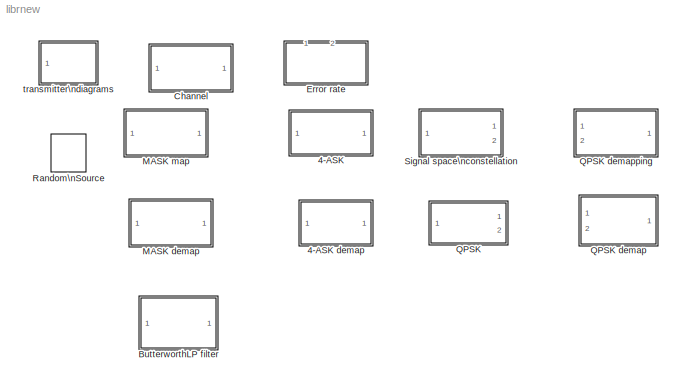
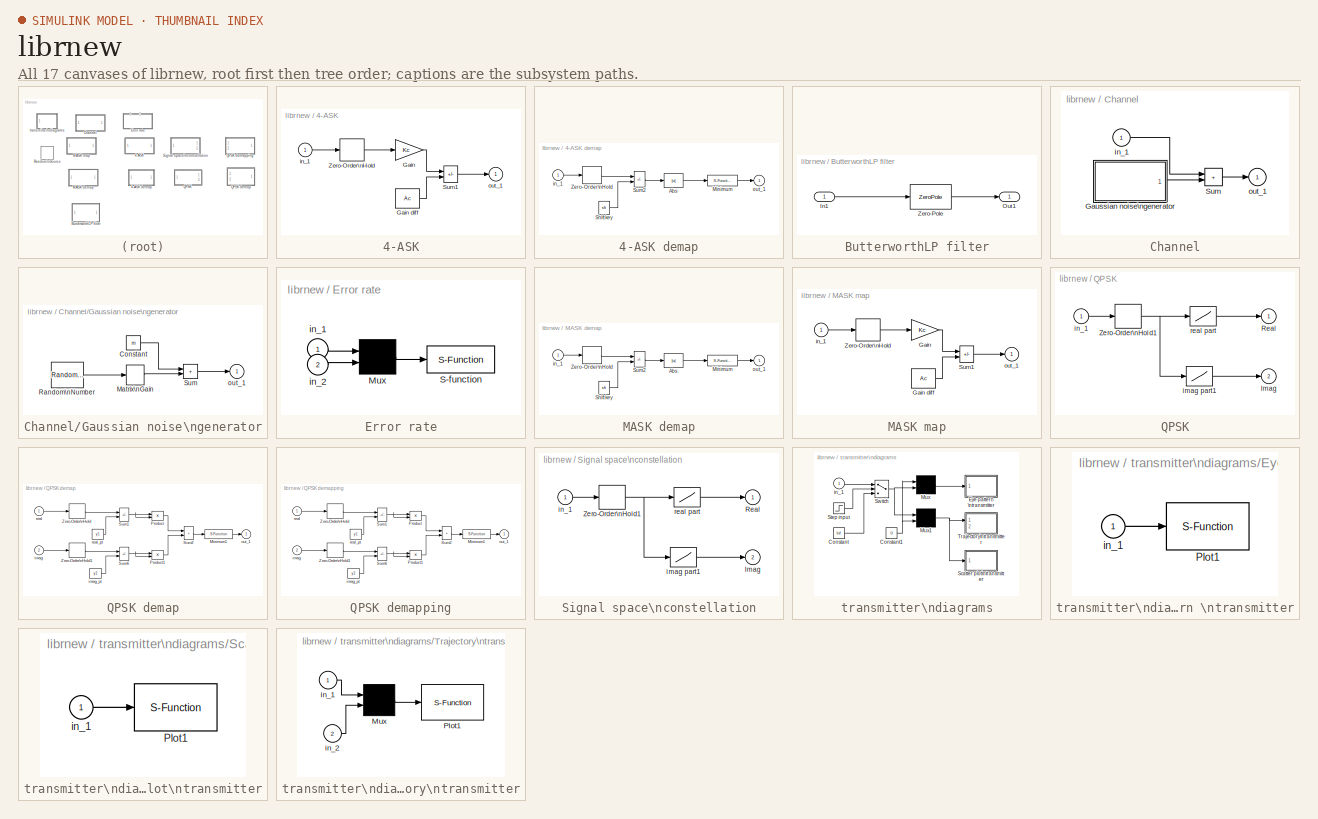
[diagram: thumbnail index - all 17 canvases of the model, root first then tree order]
MODEL librnew
KIND library
BLOCK [SubSystem] 4-ASK
  MaskCallbackString = |
  MaskDescription = Map a digital symbol onto an analog\nsignal in the range [-1, 1] using M-ary\namplitude shift keying modulation mapping.
  MaskDisplay = disp('MASK\\nmapping')
  MaskEnableString = on,on
  MaskHelp = This block maps an input digit signal onto a signal in the range [-1, 1]. The coded signal can be modulated using analog\\nmodulation blocks. Input digits are in the range [0, M-1], where M is the M-ary number. The input symbol interval can be a two-element vector with the second element being offset. The default value offset is 0. Use the MODMAP function to see the constellation.
  MaskIconFrame = on
  MaskIconOpaque = on
  MaskIconRotate = none
  MaskIconUnits = autoscale
  MaskInitialization = Ac=1;Kc=Ac*2/(N-1);
  MaskPromptString = M-ary number (input integers in range [0, M-1]):|Input symbol interval and offset (sec):
  MaskStyleString = edit,edit
  MaskToolTipString = on,on
  MaskTunableValueString = on,on
  MaskType = M-ASK mapping
  MaskValueString = 4|1
  MaskVariableAliases = ,
  MaskVariables = N=@1;td=@2;
  MaskVisibilityString = on,on
  Ports = [1, 1]
  RTWFcnNameOpts = Auto
  RTWFileNameOpts = Auto
  RTWSystemCode = Auto
  ShowPortLabels = on
  TreatAsAtomicUnit = off
BLOCK [SubSystem] 4-ASK demap
  MaskCallbackString = |
  MaskDescription = Reverse the MASK mapping process\nConvert [-1 1] analog signal to [0, M-1] symbols.
  MaskDisplay = disp('MASK\\ndemapping')
  MaskEnableString = on,on
  MaskHelp = This block demaps a MASK mapped signal back to digit symbols. You can place this block after a amplitude demodulation block. The input of this block is an analog signal in the range [-1, 1]. The demodulation decides the closest integer fitting in [0,M-1] range. When the input symbol interval is a two-elements vector, the second element is offset. The default offset value is 0.
  MaskIconFrame = on
  MaskIconOpaque = on
  MaskIconRotate = none
  MaskIconUnits = autoscale
  MaskInitialization = Ac=1;sft=[0:N-1]*Ac*2/(N-1)-Ac;
  MaskPromptString = M-ary number (digit integers in ranger [0, M-1]):|Output symbol interval and offset (sec):
  MaskStyleString = edit,edit
  MaskToolTipString = on,on
  MaskTunableValueString = on,on
  MaskType = MASK demapping
  MaskValueString = 4|[1, .9]
  MaskVariableAliases = ,
  MaskVariables = N=@1;td=@2;
  MaskVisibilityString = on,on
  Ports = [1, 1]
  RTWFcnNameOpts = Auto
  RTWFileNameOpts = Auto
  RTWSystemCode = Auto
  ShowPortLabels = on
  TreatAsAtomicUnit = off
BLOCK [Abs] 4-ASK demap/Abs
  SaturateOnIntegerOverflow = on
BLOCK [S-Function] 4-ASK demap/Minimum
  FunctionName = arymimai
  Parameters = 'min'
  PortCounts = []
  Ports = [1, 1]
  SFunctionModules = ''
BLOCK [Constant] 4-ASK demap/Shift key
  Value = sft
  VectorParams1D = on
BLOCK [Sum] 4-ASK demap/Sum2
  IconShape = rectangular
  Inputs = +-
  Ports = [2, 1]
  SaturateOnIntegerOverflow = on
BLOCK [ZeroOrderHold] 4-ASK demap/Zero-Order\nHold
  SampleTime = td
BLOCK [Inport] 4-ASK demap/in_1
  Interpolate = on
  LatchInput = off
  Port = 1
BLOCK [Outport] 4-ASK demap/out_1
  InitialOutput = []
  OutputWhenDisabled = held
  Port = 1
BLOCK [Gain] 4-ASK/Gain
  Gain = Kc
  Multiplication = Element-wise(K.*u)
  SaturateOnIntegerOverflow = on
BLOCK [Constant] 4-ASK/Gain diff
  Value = Ac
  VectorParams1D = on
BLOCK [Sum] 4-ASK/Sum1
  IconShape = rectangular
  Inputs = +-
  Ports = [2, 1]
  SaturateOnIntegerOverflow = on
BLOCK [ZeroOrderHold] 4-ASK/Zero-Order\nHold
  SampleTime = td
BLOCK [Inport] 4-ASK/in_1
  Interpolate = on
  LatchInput = off
  Port = 1
BLOCK [Outport] 4-ASK/out_1
  InitialOutput = []
  OutputWhenDisabled = held
  Port = 1
BLOCK [SubSystem] ButterworthLP filter
  MaskCallbackString = |
  MaskDisplay = plot(0,0,100,100,[90,10,10],[10,10,90],[70,40,9],[10,70,70])
  MaskEnableString = on,on
  MaskIconFrame = on
  MaskIconOpaque = on
  MaskIconRotate = none
  MaskIconUnits = autoscale
  MaskInitialization = z = @1 * [];\np = @1 * exp(i*(pi*(1:2:n-1)/(2*n) + pi/2));\np = [p; conj(p)];\np = p(:);\nif rem(n,2)==1   % n is odd\n    p = [p; -1];\nend\nk = real(prod(-p));
  MaskPromptString = Cutoff frequency (rad/s)|Filter order
  MaskStyleString = edit,edit
  MaskToolTipString = on,on
  MaskTunableValueString = on,on
  MaskType = Lowpass Butterworth filter
  MaskValueString = 5|4
  MaskVariableAliases = ,
  MaskVariables = n=@2;
  MaskVisibilityString = on,on
  Ports = [1, 1]
  RTWFcnNameOpts = Auto
  RTWFileNameOpts = Auto
  RTWSystemCode = Auto
  ShowPortLabels = on
  TreatAsAtomicUnit = off
BLOCK [Inport] ButterworthLP filter/In1
  Interpolate = on
  LatchInput = off
  Port = 1
BLOCK [Outport] ButterworthLP filter/Out1
  InitialOutput = []
  OutputWhenDisabled = held
  Port = 1
BLOCK [ZeroPole] ButterworthLP filter/Zero-Pole
  AbsoluteTolerance = auto
  Gain = k
  Poles = p
  Zeros = z
BLOCK [SubSystem] Channel
  MaskCallbackString = ||
  MaskDescription = Additive white Gaussian noise channel\nwith fixed mean and variance.
  MaskDisplay = plot(0,0,100,100);\ndisp('AWGN')
  MaskEnableString = on,on,on
  MaskHelp = This block adds white Gaussian noise to the input signal. The mean and the variance can be a scalar or vector with the same length as the input signal.
  MaskIconFrame = on
  MaskIconOpaque = on
  MaskIconRotate = none
  MaskIconUnits = autoscale
  MaskInitialization = [m,variance,s]=gwnoise(m,variance,s);\n
  MaskPromptString = Mean value:|Variance (std^2):|Initial Seed:
  MaskStyleString = edit,edit,edit
  MaskToolTipString = on,on,on
  MaskTunableValueString = on,on,on
  MaskType = AWGN channel, fixed parameter
  MaskValueString = 0|0.00010|12345
  MaskVariableAliases = ,,
  MaskVariables = m=@1;variance=@2;s=@3;
  MaskVisibilityString = on,on,on
  Ports = [1, 1]
  RTWFcnNameOpts = Auto
  RTWFileNameOpts = Auto
  RTWSystemCode = Auto
  ShowPortLabels = off
  TreatAsAtomicUnit = off
BLOCK [SubSystem] Channel/Gaussian noise\ngenerator
  MaskCallbackString = ||
  MaskDescription = Generate Gaussian distributed noise with\ngiven mean and variance value.
  MaskDisplay = plot(0,0,100,100,x,y);disp('Gaussian')
  MaskEnableString = on,on,on
  MaskHelp = When the mean value and seed are vectors, the output of this block is a vector. The length of the vector is the same as the length of the mean value vector or the length of the seed. When the variance entry is a vector, the variance is a diagonal matrix.
  MaskIconFrame = on
  MaskIconOpaque = on
  MaskIconRotate = none
  MaskIconUnits = autoscale
  MaskInitialization = [m,variance,s]=gwnoise(m,variance,s);[x,y]=srcsicon(3);
  MaskPromptString = Mean value:|Variance (vector or matrix):|Initial seed:
  MaskStyleString = edit,edit,edit
  MaskToolTipString = on,on,on
  MaskTunableValueString = on,on,on
  MaskType = Gaussian noise generator
  MaskValueString = m|variance|s
  MaskVariableAliases = ,,
  MaskVariables = m=@1;variance=@2;s=@3;
  MaskVisibilityString = on,on,on
  Ports = [0, 1]
  RTWFcnNameOpts = Auto
  RTWFileNameOpts = Auto
  RTWSystemCode = Auto
  ShowPortLabels = off
  TreatAsAtomicUnit = off
BLOCK [Constant] Channel/Gaussian noise\ngenerator/Constant
  Value = m
  VectorParams1D = on
BLOCK [StateSpace] Channel/Gaussian noise\ngenerator/Matrix\nGain
  A = []
  AbsoluteTolerance = auto
  B = []
  C = []
  D = K
  MaskDescription = Matrix Gain.
  MaskDisplay = disp('K')
  MaskEnableString = on
  MaskHelp = Multiplies input vector by entered matrix to produce output vector (y=Au).
  MaskIconFrame = on
  MaskIconOpaque = on
  MaskIconRotate = none
  MaskIconUnits = autoscale
  MaskInitialization = K = @1;
  MaskPromptString = Gain matrix:
  MaskStyleString = edit
  MaskToolTipString = on
  MaskTunableValueString = on
  MaskType = Matrix Gain
  MaskValueString = variance
  MaskVisibilityString = on
  Realization = auto
  X0 = 0
BLOCK [RandomNumber] Channel/Gaussian noise\ngenerator/Random\nNumber
  Mean = 0
  SampleTime = 0
  Seed = s
  Variance = 1
  VectorParams1D = on
BLOCK [Sum] Channel/Gaussian noise\ngenerator/Sum
  IconShape = rectangular
  Inputs = ++
  Ports = [2, 1]
  SaturateOnIntegerOverflow = on
BLOCK [Outport] Channel/Gaussian noise\ngenerator/out_1
  InitialOutput = []
  OutputWhenDisabled = held
  Port = 1
BLOCK [Sum] Channel/Sum
  IconShape = rectangular
  Inputs = ++
  Ports = [2, 1]
  SaturateOnIntegerOverflow = on
BLOCK [Inport] Channel/in_1
  Interpolate = on
  LatchInput = off
  Port = 1
BLOCK [Outport] Channel/out_1
  InitialOutput = []
  OutputWhenDisabled = held
  Port = 1
BLOCK [SubSystem] Error rate
  CopyFcn = sbiterr([],[],[],'CopyBlock')
  DeleteFcn = sbiterr([],[],[],'DeleteBlock')
  LoadFcn = sbiterr([],[],[],'LoadBlock')
  MaskCallbackString = |||
  MaskDescription = Use the input data from the 1st port as the reference signal to detect the number of errors and error rate of the 2nd signal.
  MaskDisplay = disp('Error\\nmeter')
  MaskEnableString = on,on,on,on
  MaskHelp = The signal from the first port must be a scalar. The second input port can be a vector with a delay to the first port signal. The comparison happens only at the sampling point.
  MaskIconFrame = on
  MaskIconOpaque = on
  MaskIconRotate = none
  MaskIconUnits = autoscale
  MaskInitialization = K=@1;num_lin=@2;TDelay=@3;Sample=@4;
  MaskPromptString = Bit per symbol:|Number of digits on display:|Delay between 1st port and 2nd port:|Sample time (sec):
  MaskStyleString = edit,edit,edit,edit
  MaskToolTipString = on,on,on,on
  MaskTunableValueString = on,on,on,on
  MaskType = Symbol/bit error counter
  MaskValueString = 1|10|12|1
  MaskVariableAliases = ,,,
  MaskVisibilityString = on,on,on,on
  NameChangeFcn = sbiterr([],[],[],'NameChange')
  Ports = [2]
  RTWFcnNameOpts = Auto
  RTWFileNameOpts = Auto
  RTWSystemCode = Auto
  ShowPortLabels = off
  StartFcn = sbiterr([],[],[],'Start')
  StopFcn = sbiterr([],[],[],'Stop')
  TreatAsAtomicUnit = off
BLOCK [Mux] Error rate/Mux
  DisplayOption = none
  Inputs = 2
  Ports = [2, 1]
BLOCK [S-Function] Error rate/S-function
  FunctionName = sbiterr
  Parameters = num_lin, K, TDelay, Sample
  PortCounts = []
  Ports = [1]
  SFunctionModules = ''
BLOCK [Inport] Error rate/in_1
  Interpolate = on
  LatchInput = off
  Port = 1
BLOCK [Inport] Error rate/in_2
  Interpolate = on
  LatchInput = off
  Port = 2
BLOCK [SubSystem] MASK demap
  MaskCallbackString = |
  MaskDescription = Reverse the MASK mapping process\nConvert [-1 1] analog signal to [0, M-1] symbols.
  MaskDisplay = disp('MASK\\ndemap')
  MaskEnableString = on,on
  MaskHelp = This block demaps a MASK mapped signal back to digit symbols. You can place this block after a amplitude demodulation block. The input of this block is an analog signal in the range [-1, 1]. The demodulation decides the closest integer fitting in [0,M-1] range. When the input symbol interval is a two-elements vector, the second element is offset. The default offset value is 0.
  MaskIconFrame = on
  MaskIconOpaque = on
  MaskIconRotate = none
  MaskIconUnits = autoscale
  MaskInitialization = N=@1;Ac=1;sft=[0:N-1]*Ac*2/(N-1)-Ac;td=@2;
  MaskPromptString = M-ary number (digit integers in ranger [0, M-1]):|Output symbol interval and offset (sec):
  MaskStyleString = edit,edit
  MaskToolTipString = on,on
  MaskTunableValueString = on,on
  MaskType = MASK demap
  MaskValueString = 4|[1, .9]
  MaskVariableAliases = ,
  MaskVisibilityString = on,on
  Ports = [1, 1]
  RTWFcnNameOpts = Auto
  RTWFileNameOpts = Auto
  RTWSystemCode = Auto
  ShowPortLabels = off
  TreatAsAtomicUnit = off
BLOCK [Abs] MASK demap/Abs
  SaturateOnIntegerOverflow = on
BLOCK [S-Function] MASK demap/Minimum
  FunctionName = arymimai
  Parameters = 'min'
  PortCounts = []
  Ports = [1, 1]
  SFunctionModules = ''
BLOCK [Constant] MASK demap/Shift key
  Value = sft
  VectorParams1D = on
BLOCK [Sum] MASK demap/Sum2
  IconShape = rectangular
  Inputs = +-
  Ports = [2, 1]
  SaturateOnIntegerOverflow = on
BLOCK [ZeroOrderHold] MASK demap/Zero-Order\nHold
  SampleTime = td
BLOCK [Inport] MASK demap/in_1
  Interpolate = on
  LatchInput = off
  Port = 1
BLOCK [Outport] MASK demap/out_1
  InitialOutput = []
  OutputWhenDisabled = held
  Port = 1
BLOCK [SubSystem] MASK map
  MaskCallbackString = |
  MaskDescription = Map a digital symbol onto an analog\nsignal in the range [-1, 1] using M-ary\namplitude shift keying modulation mapping.
  MaskDisplay = disp('MASK\\nmap')
  MaskEnableString = on,on
  MaskHelp = This block maps an input digit signal onto a signal in the range [-1, 1]. The coded signal can be modulated using analog\\nmodulation blocks. Input digits are in the range [0, M-1], where M is the M-ary number. The input symbol interval can be a two-element vector with the second element being offset. The default value offset is 0. Use the MODMAP function to see the constellation.
  MaskIconFrame = on
  MaskIconOpaque = on
  MaskIconRotate = none
  MaskIconUnits = autoscale
  MaskInitialization = N=@1;Ac=1;Kc=Ac*2/(N-1);td=@2;
  MaskPromptString = M-ary number (input integers in range [0, M-1]):|Input symbol interval and offset (sec):
  MaskStyleString = edit,edit
  MaskToolTipString = on,on
  MaskTunableValueString = on,on
  MaskType = MASK map
  MaskValueString = 4|1
  MaskVariableAliases = ,
  MaskVisibilityString = on,on
  Ports = [1, 1]
  RTWFcnNameOpts = Auto
  RTWFileNameOpts = Auto
  RTWSystemCode = Auto
  ShowPortLabels = off
  TreatAsAtomicUnit = off
BLOCK [Gain] MASK map/Gain
  Gain = Kc
  Multiplication = Element-wise(K.*u)
  SaturateOnIntegerOverflow = on
BLOCK [Constant] MASK map/Gain diff
  Value = Ac
  VectorParams1D = on
BLOCK [Sum] MASK map/Sum1
  IconShape = rectangular
  Inputs = +-
  Ports = [2, 1]
  SaturateOnIntegerOverflow = on
BLOCK [ZeroOrderHold] MASK map/Zero-Order\nHold
  SampleTime = td
BLOCK [Inport] MASK map/in_1
  Interpolate = on
  LatchInput = off
  Port = 1
BLOCK [Outport] MASK map/out_1
  InitialOutput = []
  OutputWhenDisabled = held
  Port = 1
BLOCK [SubSystem] QPSK
  MaskCallbackString = |||
  MaskDescription = QASK mapping with circle constellation. The constellation is defined in NIC, RIC and PIC.
  MaskDisplay = disp('MPSK\\nmapping')
  MaskEnableString = on,on,on,on
  MaskHelp = This block maps a digital signal onto in-phase and quadratic components, which are outputs in the first and second output port respectively. The circle constellation is defined in NIC, RIC, and PIC. The input symbol interval can be a two-element vector with the second element being offset. The default value offset is 0. Use the MODMAP function to see the constellation.
  MaskIconFrame = on
  MaskIconOpaque = on
  MaskIconRotate = none
  MaskIconUnits = autoscale
  MaskInitialization = y1=apkconst(N,A,P);y1=[y1;y1];y1=y1(:);y2=imag(y1);y1=real(y1);x=[-sum(N) 1:sum(N)-1;1:sum(N)-1 10*sum(N)]-.5;x=x(:);
  MaskPromptString = Number of symbols in each circle NIC:|Radii in each circle RIC:|Phase shift in each circle PIC (rad):|Symbol interval and offset (sec):
  MaskStyleString = edit,edit,edit,edit
  MaskToolTipString = on,on,on,on
  MaskTunableValueString = on,on,on,on
  MaskType = MPSK
  MaskValueString = [4]|[sqrt(2)]|[pi/4]|1
  MaskVariableAliases = ,,,
  MaskVariables = N=@1;A=@2;P=@3;td=@4;
  MaskVisibilityString = on,on,on,on
  Ports = [1, 2]
  RTWFcnNameOpts = Auto
  RTWFileNameOpts = Auto
  RTWSystemCode = Auto
  ShowPortLabels = on
  TreatAsAtomicUnit = off
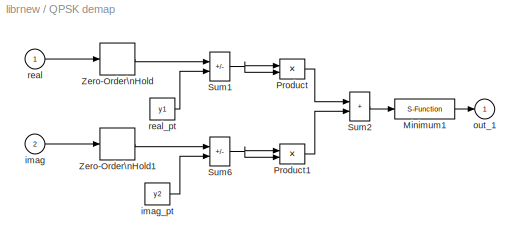
BLOCK [SubSystem] QPSK demap
  MaskCallbackString = |||
  MaskDescription = Reverse the QASK map. Input in-phase\nand quadrature components from the\ntwo inputs. Output demapped signal.
  MaskDisplay = disp('MPSK\\ndemapping')
  MaskEnableString = on,on,on,on
  MaskHelp = This block demaps a QASK mapped signal using circle constellation. You can place this block after a QAM demodulation block. The circle constellation is defined in NIC, RIC, and PIC. The symbol interval can be a two elements vector with the first element being offset. The default offset is zero. Use function MODMAP to view the constellation.
  MaskIconFrame = on
  MaskIconOpaque = on
  MaskIconRotate = none
  MaskIconUnits = autoscale
  MaskInitialization = y1=apkconst(N,A,P);y2=imag(y1);y1=real(y1);
  MaskPromptString = Number of symbols on each circle NIC::|Radii for each circle RIC:|Phase shift on each circle PIC (rad):|Symbol interval and offset (sec):
  MaskStyleString = edit,edit,edit,edit
  MaskToolTipString = on,on,on,on
  MaskTunableValueString = on,on,on,on
  MaskType = MPSK demapping
  MaskValueString = [4]|[sqrt(2)]|[pi/4]|1
  MaskVariableAliases = ,,,
  MaskVariables = N=@1;A=@2;P=@3;td=@4;
  MaskVisibilityString = on,on,on,on
  Ports = [2, 1]
  RTWFcnNameOpts = Auto
  RTWFileNameOpts = Auto
  RTWSystemCode = Auto
  ShowPortLabels = on
  TreatAsAtomicUnit = off
BLOCK [S-Function] QPSK demap/Minimum1
  FunctionName = arymimai
  Parameters = 'min'
  PortCounts = []
  Ports = [1, 1]
  SFunctionModules = ''
BLOCK [Product] QPSK demap/Product
  Inputs = 2
  Multiplication = Element-wise(.*)
  Ports = [2, 1]
  SaturateOnIntegerOverflow = on
BLOCK [Product] QPSK demap/Product1
  Inputs = 2
  Multiplication = Element-wise(.*)
  Ports = [2, 1]
  SaturateOnIntegerOverflow = on
BLOCK [Sum] QPSK demap/Sum1
  IconShape = rectangular
  Inputs = +-
  Ports = [2, 1]
  SaturateOnIntegerOverflow = on
BLOCK [Sum] QPSK demap/Sum2
  IconShape = rectangular
  Inputs = ++
  Ports = [2, 1]
  SaturateOnIntegerOverflow = on
BLOCK [Sum] QPSK demap/Sum6
  IconShape = rectangular
  Inputs = +-
  Ports = [2, 1]
  SaturateOnIntegerOverflow = on
BLOCK [ZeroOrderHold] QPSK demap/Zero-Order\nHold
  SampleTime = td
BLOCK [ZeroOrderHold] QPSK demap/Zero-Order\nHold1
  SampleTime = td
BLOCK [Inport] QPSK demap/imag
  Interpolate = on
  LatchInput = off
  Port = 2
BLOCK [Constant] QPSK demap/imag_pt
  Value = y2
  VectorParams1D = on
BLOCK [Outport] QPSK demap/out_1
  InitialOutput = []
  OutputWhenDisabled = held
  Port = 1
BLOCK [Inport] QPSK demap/real
  Interpolate = on
  LatchInput = off
  Port = 1
BLOCK [Constant] QPSK demap/real_pt
  Value = y1
  VectorParams1D = on
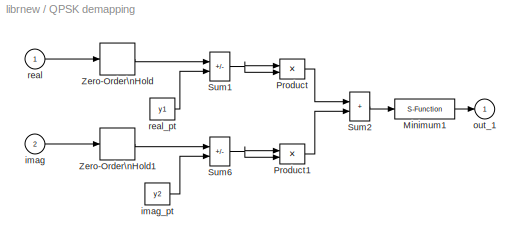
BLOCK [SubSystem] QPSK demapping
  MaskCallbackString = |||
  MaskDescription = Reverse the QASK map. Input in-phase\nand quadrature components from the\ntwo inputs. Output demapped signal.
  MaskDisplay = disp('QASK\\nC-demap')
  MaskEnableString = on,on,on,on
  MaskHelp = This block demaps a QASK mapped signal using circle constellation. You can place this block after a QAM demodulation block. The circle constellation is defined in NIC, RIC, and PIC. The symbol interval can be a two elements vector with the first element being offset. The default offset is zero. Use function MODMAP to view the constellation.
  MaskIconFrame = on
  MaskIconOpaque = on
  MaskIconRotate = none
  MaskIconUnits = autoscale
  MaskInitialization = N=@1;A=@2;P=@3;td=@4;y1=apkconst(N,A,P);y2=imag(y1);y1=real(y1);
  MaskPromptString = Number of symbols on each circle NIC::|Radii for each circle RIC:|Phase shift on each circle PIC (rad):|Symbol interval and offset (sec):
  MaskStyleString = edit,edit,edit,edit
  MaskToolTipString = on,on,on,on
  MaskTunableValueString = on,on,on,on
  MaskType = QASK C-demap
  MaskValueString = [4]|[sqrt(2)]|[pi/4]|1
  MaskVariableAliases = ,,,
  MaskVisibilityString = on,on,on,on
  Ports = [2, 1]
  RTWFcnNameOpts = Auto
  RTWFileNameOpts = Auto
  RTWSystemCode = Auto
  ShowPortLabels = off
  TreatAsAtomicUnit = off
BLOCK [S-Function] QPSK demapping/Minimum1
  FunctionName = arymimai
  Parameters = 'min'
  PortCounts = []
  Ports = [1, 1]
  SFunctionModules = ''
BLOCK [Product] QPSK demapping/Product
  Inputs = 2
  Multiplication = Element-wise(.*)
  Ports = [2, 1]
  SaturateOnIntegerOverflow = on
BLOCK [Product] QPSK demapping/Product1
  Inputs = 2
  Multiplication = Element-wise(.*)
  Ports = [2, 1]
  SaturateOnIntegerOverflow = on
BLOCK [Sum] QPSK demapping/Sum1
  IconShape = rectangular
  Inputs = +-
  Ports = [2, 1]
  SaturateOnIntegerOverflow = on
BLOCK [Sum] QPSK demapping/Sum2
  IconShape = rectangular
  Inputs = ++
  Ports = [2, 1]
  SaturateOnIntegerOverflow = on
BLOCK [Sum] QPSK demapping/Sum6
  IconShape = rectangular
  Inputs = +-
  Ports = [2, 1]
  SaturateOnIntegerOverflow = on
BLOCK [ZeroOrderHold] QPSK demapping/Zero-Order\nHold
  SampleTime = td
BLOCK [ZeroOrderHold] QPSK demapping/Zero-Order\nHold1
  SampleTime = td
BLOCK [Inport] QPSK demapping/imag
  Interpolate = on
  LatchInput = off
  Port = 2
BLOCK [Constant] QPSK demapping/imag_pt
  Value = y2
  VectorParams1D = on
BLOCK [Outport] QPSK demapping/out_1
  InitialOutput = []
  OutputWhenDisabled = held
  Port = 1
BLOCK [Inport] QPSK demapping/real
  Interpolate = on
  LatchInput = off
  Port = 1
BLOCK [Constant] QPSK demapping/real_pt
  Value = y1
  VectorParams1D = on
BLOCK [Outport] QPSK/Imag
  InitialOutput = []
  OutputWhenDisabled = held
  Port = 2
BLOCK [Outport] QPSK/Real
  InitialOutput = []
  OutputWhenDisabled = held
  Port = 1
BLOCK [ZeroOrderHold] QPSK/Zero-Order\nHold1
  SampleTime = td
BLOCK [Lookup] QPSK/imag part1
  InputValues = x
  OutputValues = y2
BLOCK [Inport] QPSK/in_1
  Interpolate = on
  LatchInput = off
  Port = 1
BLOCK [Lookup] QPSK/real part
  InputValues = x
  OutputValues = y1
BLOCK [S-Function] Random\nSource
  Diagnostics = AllowInheritedTsInSrc
  FunctionName = sdsprandsrc2
  MaskCallbackString = dspblkrandsrc2;|||||dspblkrandsrc2;||dspblkrandsrc2;|dspblkrandsrc2;|||
  MaskDescription = Output a random signal with uniform or Gaussian (normal) distribution.  Set output repeatability to Nonrepeatable (block randomly selects initial seed every time simulation starts), Repeatable (block randomly selects initial seed once and uses it every time simulation starts), or Specify seed (block uses specified initial seed every time simulation starts, producing repeatable output).
  MaskDisplay = plot(x,y);\n
  MaskEnableString = on,on,on,off,off,on,on,on,on,on,on,on
  MaskHelp = web(dspbhelp);
  MaskIconFrame = on
  MaskIconOpaque = on
  MaskIconRotate = none
  MaskIconUnits = normalized
  MaskInitialization = [x,y]=dspblkrandsrc2('icon');SFcnSeed=eval(dspblkrandsrc2('seed'),'Seed');
  MaskPromptString = Source type:|Minimum:|Maximum:|Mean:|Variance:|Repeatability:|Initial seed:|Inherit output port attributes|Sample mode: |Sample time:|Samples per frame:|Output complexity:
  MaskSelfModifiable = on
  MaskStyleString = popup(Uniform|Gaussian),edit,edit,edit,edit,popup(Specify seed|Repeatable|Not repeatable),edit,checkbox,popup(Discrete|Continuous),edit,edit,popup(Real|Complex)
  MaskToolTipString = on,on,on,on,on,on,on,on,on,on,on,on
  MaskTunableValueString = off,on,on,on,on,off,off,off,off,off,off,off
  MaskType = Random Source
  MaskValueString = Gaussian|0|1|0|1|Specify seed|seed|on|Discrete|1|1|Real
  MaskVariableAliases = ,,,,,,,,,,,
  MaskVariables = SrcType=@1;Min=@2;Max=@3;Mean=@4;Var=@5;RepMode=@6;Seed=@7;Inherit=@8;SampMode=@9;SampTime=@10;SampFrame=@11;OutComplex=@12
  MaskVisibilityString = on,on,on,on,on,on,on,on,on,on,on,on
  Parameters = SrcType,Min,Max,Mean,Var,SFcnSeed,Inherit,SampMode,SampTime,SampFrame,OutComplex,RepMode,Seed
  PortCounts = []
  Ports = [0, 1]
  SFunctionModules = ''
BLOCK [SubSystem] Signal space\nconstellation
  MaskCallbackString = |||
  MaskDescription = QASK mapping with circle constellation. The constellation is defined in NIC, RIC and PIC.
  MaskDisplay = disp('QASK\\nC-map')
  MaskEnableString = on,on,on,on
  MaskHelp = This block maps a digital signal onto in-phase and quadratic components, which are outputs in the first and second output port respectively. The circle constellation is defined in NIC, RIC, and PIC. The input symbol interval can be a two-element vector with the second element being offset. The default value offset is 0. Use the MODMAP function to see the constellation.
  MaskIconFrame = on
  MaskIconOpaque = on
  MaskIconRotate = none
  MaskIconUnits = autoscale
  MaskInitialization = N=@1;A=@2;P=@3;td=@4;y1=apkconst(N,A,P);y1=[y1;y1];y1=y1(:);y2=imag(y1);y1=real(y1);x=[-sum(N) 1:sum(N)-1;1:sum(N)-1 10*sum(N)]-.5;x=x(:);
  MaskPromptString = Number of symbols in each circle NIC:|Radii in each circle RIC:|Phase shift in each circle PIC (rad):|Symbol interval and offset (sec):
  MaskStyleString = edit,edit,edit,edit
  MaskToolTipString = on,on,on,on
  MaskTunableValueString = on,on,on,on
  MaskType = QASK C-map
  MaskValueString = [4]|[sqrt(2)]|[pi/4]|1
  MaskVariableAliases = ,,,
  MaskVisibilityString = on,on,on,on
  Ports = [1, 2]
  RTWFcnNameOpts = Auto
  RTWFileNameOpts = Auto
  RTWSystemCode = Auto
  ShowPortLabels = off
  TreatAsAtomicUnit = off
BLOCK [Outport] Signal space\nconstellation/Imag
  InitialOutput = []
  OutputWhenDisabled = held
  Port = 2
BLOCK [Outport] Signal space\nconstellation/Real
  InitialOutput = []
  OutputWhenDisabled = held
  Port = 1
BLOCK [ZeroOrderHold] Signal space\nconstellation/Zero-Order\nHold1
  SampleTime = td
BLOCK [Lookup] Signal space\nconstellation/imag part1
  InputValues = x
  OutputValues = y2
BLOCK [Inport] Signal space\nconstellation/in_1
  Interpolate = on
  LatchInput = off
  Port = 1
BLOCK [Lookup] Signal space\nconstellation/real part
  InputValues = x
  OutputValues = y1
BLOCK [SubSystem] transmitter\ndiagrams
  MaskCallbackString = ||
  MaskDescription = Eye pattern,  signal-space trajectory and scatter plot
  MaskDisplay = plot(0,0,100,100,x,y)
  MaskEnableString = on,on,on
  MaskIconFrame = on
  MaskIconOpaque = on
  MaskIconRotate = none
  MaskIconUnits = autoscale
  MaskInitialization = [x, y] = srcsicon(10);
  MaskPromptString = Plot start time:|samples per time slot|decision offset
  MaskStyleString = edit,edit,edit
  MaskToolTipString = on,on,on
  MaskTunableValueString = on,on,on
  MaskType = Diagrams
  MaskValueString = 6|40|0
  MaskVariableAliases = ,,
  MaskVariables = starttime=@1;anzahl=@2;offset=@3;
  MaskVisibilityString = on,on,on
  Ports = [1]
  RTWFcnNameOpts = Auto
  RTWFileNameOpts = Auto
  RTWSystemCode = Auto
  ShowPortLabels = off
  TreatAsAtomicUnit = off
BLOCK [Constant] transmitter\ndiagrams/Constant
  Value = Inf
  VectorParams1D = on
BLOCK [Constant] transmitter\ndiagrams/Constant1
  Value = 0
  VectorParams1D = on
BLOCK [SubSystem] transmitter\ndiagrams/Eye pattern \ntransmitter
  CopyFcn = eyesampl([],[],[],'CopyBlock')
  DeleteFcn = eyesampl([],[],[],'DeleteBlock')
  LoadFcn = eyesampl([],[],[],'LoadBlock')
  MaskCallbackString = |||||
  MaskDescription = Produce eye-pattern diagram and/or scatter plot.
  MaskDisplay = plot(0,0,100,100,x,y);
  MaskEnableString = on,on,on,on,on,on
  MaskHelp = This plot opens one, or two plots by assigning the line type parameters. The scatter plot point is selected by the decision point in the first parameter entry. A decision line is drawn in the eye-pattern diagram. The plot is updated at the plot update sample time point.
  MaskIconFrame = on
  MaskIconOpaque = on
  MaskIconRotate = none
  MaskIconUnits = autoscale
  MaskInitialization = time_range=@1;boundary=@2;kept_length=@3;eye_line=@4;scatter_line=@5;two_d_line=@6;[x,y]=srcsicon(10);
  MaskPromptString = [Symbol interval, plot offset, decision point offset]:|Lower and upper bound of in-coming signal (1x2 vector):|Number of saved traces:|Line-type for eye-pattern diagram (0 for no plot):|Line-type for scatter plot (0 for no plot):|Plot update sample time:
  MaskStyleString = edit,edit,edit,edit,edit,edit
  MaskToolTipString = on,on,on,on,on,on
  MaskTunableValueString = on,on,on,on,on,on
  MaskType = Eye-diagram/scatter plot
  MaskValueString = [2 0 1+offset]|[-1.5 1.5]|0|'w-/r-'|0|2/anzahl
  MaskVariableAliases = ,,,,,
  MaskVisibilityString = on,on,on,on,on,on
  NameChangeFcn = eyesampl([],[],[],'NameChange')
  Ports = [1]
  RTWFcnNameOpts = Auto
  RTWFileNameOpts = Auto
  RTWSystemCode = Auto
  ShowPortLabels = off
  StartFcn = eyesampl([],[],[],'Start')
  StopFcn = eyesampl([],[],[],'Stop')
  TreatAsAtomicUnit = off
BLOCK [S-Function] transmitter\ndiagrams/Eye pattern \ntransmitter/Plot1
  FunctionName = eyesampl
  Parameters = time_range, boundary, kept_length, eye_line, scatter_line, two_d_line
  PortCounts = []
  Ports = [1]
  SFunctionModules = ''
BLOCK [Inport] transmitter\ndiagrams/Eye pattern \ntransmitter/in_1
  Interpolate = on
  LatchInput = off
  Port = 1
BLOCK [Mux] transmitter\ndiagrams/Mux
  DisplayOption = none
  Inputs = 2
  Ports = [2, 1]
BLOCK [Mux] transmitter\ndiagrams/Mux1
  DisplayOption = none
  Inputs = 2
  Ports = [2, 1]
BLOCK [SubSystem] transmitter\ndiagrams/Scatter plot\ntransmitter
  CopyFcn = eyesampl([],[],[],'CopyBlock')
  DeleteFcn = eyesampl([],[],[],'DeleteBlock')
  LoadFcn = eyesampl([],[],[],'LoadBlock')
  MaskCallbackString = |||||
  MaskDescription = Produce eye-pattern diagram and/or scatter plot.
  MaskDisplay = plot(0,0,100,100,x,y);
  MaskEnableString = on,on,on,on,on,on
  MaskHelp = This plot opens one, or two plots by assigning the line type parameters. The scatter plot point is selected by the decision point in the first parameter entry. A decision line is drawn in the eye-pattern diagram. The plot is updated at the plot update sample time point.
  MaskIconFrame = on
  MaskIconOpaque = on
  MaskIconRotate = none
  MaskIconUnits = autoscale
  MaskInitialization = time_range=@1;boundary=@2;kept_length=@3;eye_line=@4;scatter_line=@5;two_d_line=@6;[x,y]=srcsicon(10);
  MaskPromptString = [Symbol interval, plot offset, decision point offset]:|Lower and upper bound of in-coming signal (1x2 vector):|Number of saved traces:|Line-type for eye-pattern diagram (0 for no plot):|Line-type for scatter plot (0 for no plot):|Plot update sample time:
  MaskStyleString = edit,edit,edit,edit,edit,edit
  MaskToolTipString = on,on,on,on,on,on
  MaskTunableValueString = on,on,on,on,on,on
  MaskType = Eye-diagram/scatter plot
  MaskValueString = [1 .5 .999]|[-1.5 1.5]|0|0|'b.'|[.5 offset]
  MaskVariableAliases = ,,,,,
  MaskVisibilityString = on,on,on,on,on,on
  NameChangeFcn = eyesampl([],[],[],'NameChange')
  Ports = [1]
  RTWFcnNameOpts = Auto
  RTWFileNameOpts = Auto
  RTWSystemCode = Auto
  ShowPortLabels = off
  StartFcn = eyesampl([],[],[],'Start')
  StopFcn = eyesampl([],[],[],'Stop')
  TreatAsAtomicUnit = off
BLOCK [S-Function] transmitter\ndiagrams/Scatter plot\ntransmitter/Plot1
  FunctionName = eyesampl
  Parameters = time_range, boundary, kept_length, eye_line, scatter_line, two_d_line
  PortCounts = []
  Ports = [1]
  SFunctionModules = ''
BLOCK [Inport] transmitter\ndiagrams/Scatter plot\ntransmitter/in_1
  Interpolate = on
  LatchInput = off
  Port = 1
BLOCK [Step] transmitter\ndiagrams/Step input
  After = 1
  Before = 0
  SampleTime = 1
  Time = starttime
  VectorParams1D = on
BLOCK [Switch] transmitter\ndiagrams/Switch
  Threshold = 1
BLOCK [SubSystem] transmitter\ndiagrams/Trajectory\ntransmitter
  CopyFcn = eyediasi([],[],[],'CopyBlock')
  DeleteFcn = eyediasi([],[],[],'DeleteBlock')
  LoadFcn = eyediasi([],[],[],'LoadBlock')
  MaskCallbackString = |||||
  MaskDescription = Produce eye-pattern diagram/scatter\nplot/x-y plot with the rising edge of the second input as the decision line.
  MaskDisplay = plot(0,0,100,100,x,y,v,w);
  MaskEnableString = on,on,on,on,on,on
  MaskHelp = This plot opens one, two, or three plots by assigning the line type parameters. The scatter plot point is selected by the rising edge of a trigger signal. A decision line is drawn at the rising edge of the trigger signal.
  MaskIconFrame = on
  MaskIconOpaque = on
  MaskIconRotate = none
  MaskIconUnits = autoscale
  MaskInitialization = time_range=@1;boundary=@2;kept_length=@3;eye_line=@4;scatter_line=@5;two_d_line=@6;[x,y]=srcsicon(10);[v,w]=trigicon(0,25,get_param(gcb,'orientation'),2);
  MaskPromptString = Eye-pattern plot time frame:|Lower and upper bound of in-coming signal (1x2 vector):|Number of saved traces:|Line-type for eye-pattern diagram (0 for no plot):|Line-type for scatter plot (0 for no plot):|Line-type for x-y plot (0 for no plot):
  MaskStyleString = edit,edit,edit,edit,edit,edit
  MaskToolTipString = on,on,on,on,on,on
  MaskTunableValueString = on,on,on,on,on,on
  MaskType = Eye-diagram/scatter plot
  MaskValueString = [2 0 1]|[-1.5 1.5]|0|0|0|'g-'
  MaskVariableAliases = ,,,,,
  MaskVisibilityString = on,on,on,on,on,on
  NameChangeFcn = eyediasi([],[],[],'NameChange')
  Ports = [2]
  RTWFcnNameOpts = Auto
  RTWFileNameOpts = Auto
  RTWSystemCode = Auto
  ShowPortLabels = off
  StartFcn = eyediasi([],[],[],'Start')
  StopFcn = eyediasi([],[],[],'Stop')
  TreatAsAtomicUnit = off
BLOCK [Mux] transmitter\ndiagrams/Trajectory\ntransmitter/Mux
  DisplayOption = none
  Inputs = 2
  Ports = [2, 1]
BLOCK [S-Function] transmitter\ndiagrams/Trajectory\ntransmitter/Plot1
  FunctionName = eyediasi
  Parameters = time_range, boundary, kept_length, eye_line, scatter_line, two_d_line
  PortCounts = []
  Ports = [1]
  SFunctionModules = ''
BLOCK [Inport] transmitter\ndiagrams/Trajectory\ntransmitter/in_1
  Interpolate = on
  LatchInput = off
  Port = 1
BLOCK [Inport] transmitter\ndiagrams/Trajectory\ntransmitter/in_2
  Interpolate = on
  LatchInput = off
  Port = 2
BLOCK [Inport] transmitter\ndiagrams/in_1
  Interpolate = on
  LatchInput = off
  Port = 1
LINE 4-ASK demap/Abs:1 -> 4-ASK demap/Minimum:1
LINE 4-ASK demap/Minimum:1 -> 4-ASK demap/out_1:1
LINE 4-ASK demap/Shift key:1 -> 4-ASK demap/Sum2:2
LINE 4-ASK demap/Sum2:1 -> 4-ASK demap/Abs:1
LINE 4-ASK demap/Zero-Order\nHold:1 -> 4-ASK demap/Sum2:1
LINE 4-ASK demap/in_1:1 -> 4-ASK demap/Zero-Order\nHold:1
LINE 4-ASK/Gain diff:1 -> 4-ASK/Sum1:2
LINE 4-ASK/Gain:1 -> 4-ASK/Sum1:1
LINE 4-ASK/Sum1:1 -> 4-ASK/out_1:1
LINE 4-ASK/Zero-Order\nHold:1 -> 4-ASK/Gain:1
LINE 4-ASK/in_1:1 -> 4-ASK/Zero-Order\nHold:1
LINE ButterworthLP filter/In1:1 -> ButterworthLP filter/Zero-Pole:1
LINE ButterworthLP filter/Zero-Pole:1 -> ButterworthLP filter/Out1:1
LINE Channel/Gaussian noise\ngenerator/Constant:1 -> Channel/Gaussian noise\ngenerator/Sum:1
LINE Channel/Gaussian noise\ngenerator/Matrix\nGain:1 -> Channel/Gaussian noise\ngenerator/Sum:2
LINE Channel/Gaussian noise\ngenerator/Random\nNumber:1 -> Channel/Gaussian noise\ngenerator/Matrix\nGain:1
LINE Channel/Gaussian noise\ngenerator/Sum:1 -> Channel/Gaussian noise\ngenerator/out_1:1
LINE Channel/Gaussian noise\ngenerator:1 -> Channel/Sum:2
LINE Channel/Sum:1 -> Channel/out_1:1
LINE Channel/in_1:1 -> Channel/Sum:1
LINE Error rate/Mux:1 -> Error rate/S-function:1
LINE Error rate/in_1:1 -> Error rate/Mux:1
LINE Error rate/in_2:1 -> Error rate/Mux:2
LINE MASK demap/Abs:1 -> MASK demap/Minimum:1
LINE MASK demap/Minimum:1 -> MASK demap/out_1:1
LINE MASK demap/Shift key:1 -> MASK demap/Sum2:2
LINE MASK demap/Sum2:1 -> MASK demap/Abs:1
LINE MASK demap/Zero-Order\nHold:1 -> MASK demap/Sum2:1
LINE MASK demap/in_1:1 -> MASK demap/Zero-Order\nHold:1
LINE MASK map/Gain diff:1 -> MASK map/Sum1:2
LINE MASK map/Gain:1 -> MASK map/Sum1:1
LINE MASK map/Sum1:1 -> MASK map/out_1:1
LINE MASK map/Zero-Order\nHold:1 -> MASK map/Gain:1
LINE MASK map/in_1:1 -> MASK map/Zero-Order\nHold:1
LINE QPSK demap/Minimum1:1 -> QPSK demap/out_1:1
LINE QPSK demap/Product1:1 -> QPSK demap/Sum2:2
LINE QPSK demap/Product:1 -> QPSK demap/Sum2:1
NET QPSK demap/Sum1:1 -> QPSK demap/Product:1, QPSK demap/Product:2
LINE QPSK demap/Sum2:1 -> QPSK demap/Minimum1:1
NET QPSK demap/Sum6:1 -> QPSK demap/Product1:1, QPSK demap/Product1:2
LINE QPSK demap/Zero-Order\nHold1:1 -> QPSK demap/Sum6:1
LINE QPSK demap/Zero-Order\nHold:1 -> QPSK demap/Sum1:1
LINE QPSK demap/imag:1 -> QPSK demap/Zero-Order\nHold1:1
LINE QPSK demap/imag_pt:1 -> QPSK demap/Sum6:2
LINE QPSK demap/real:1 -> QPSK demap/Zero-Order\nHold:1
LINE QPSK demap/real_pt:1 -> QPSK demap/Sum1:2
LINE QPSK demapping/Minimum1:1 -> QPSK demapping/out_1:1
LINE QPSK demapping/Product1:1 -> QPSK demapping/Sum2:2
LINE QPSK demapping/Product:1 -> QPSK demapping/Sum2:1
NET QPSK demapping/Sum1:1 -> QPSK demapping/Product:1, QPSK demapping/Product:2
LINE QPSK demapping/Sum2:1 -> QPSK demapping/Minimum1:1
NET QPSK demapping/Sum6:1 -> QPSK demapping/Product1:1, QPSK demapping/Product1:2
LINE QPSK demapping/Zero-Order\nHold1:1 -> QPSK demapping/Sum6:1
LINE QPSK demapping/Zero-Order\nHold:1 -> QPSK demapping/Sum1:1
LINE QPSK demapping/imag:1 -> QPSK demapping/Zero-Order\nHold1:1
LINE QPSK demapping/imag_pt:1 -> QPSK demapping/Sum6:2
LINE QPSK demapping/real:1 -> QPSK demapping/Zero-Order\nHold:1
LINE QPSK demapping/real_pt:1 -> QPSK demapping/Sum1:2
NET QPSK/Zero-Order\nHold1:1 -> QPSK/imag part1:1, QPSK/real part:1
LINE QPSK/imag part1:1 -> QPSK/Imag:1
LINE QPSK/in_1:1 -> QPSK/Zero-Order\nHold1:1
LINE QPSK/real part:1 -> QPSK/Real:1
NET Signal space\nconstellation/Zero-Order\nHold1:1 -> Signal space\nconstellation/imag part1:1, Signal space\nconstellation/real part:1
LINE Signal space\nconstellation/imag part1:1 -> Signal space\nconstellation/Imag:1
LINE Signal space\nconstellation/in_1:1 -> Signal space\nconstellation/Zero-Order\nHold1:1
LINE Signal space\nconstellation/real part:1 -> Signal space\nconstellation/Real:1
NET transmitter\ndiagrams/Constant1:1 -> transmitter\ndiagrams/Mux1:2, transmitter\ndiagrams/Mux:1
LINE transmitter\ndiagrams/Constant:1 -> transmitter\ndiagrams/Switch:3
LINE transmitter\ndiagrams/Eye pattern \ntransmitter/in_1:1 -> transmitter\ndiagrams/Eye pattern \ntransmitter/Plot1:1
NET transmitter\ndiagrams/Mux1:1 -> transmitter\ndiagrams/Scatter plot\ntransmitter:1, transmitter\ndiagrams/Trajectory\ntransmitter:1
LINE transmitter\ndiagrams/Mux:1 -> transmitter\ndiagrams/Eye pattern \ntransmitter:1
LINE transmitter\ndiagrams/Scatter plot\ntransmitter/in_1:1 -> transmitter\ndiagrams/Scatter plot\ntransmitter/Plot1:1
LINE transmitter\ndiagrams/Step input:1 -> transmitter\ndiagrams/Switch:2
NET transmitter\ndiagrams/Switch:1 -> transmitter\ndiagrams/Mux1:1, transmitter\ndiagrams/Mux:2
LINE transmitter\ndiagrams/Trajectory\ntransmitter/Mux:1 -> transmitter\ndiagrams/Trajectory\ntransmitter/Plot1:1
LINE transmitter\ndiagrams/Trajectory\ntransmitter/in_1:1 -> transmitter\ndiagrams/Trajectory\ntransmitter/Mux:1
LINE transmitter\ndiagrams/Trajectory\ntransmitter/in_2:1 -> transmitter\ndiagrams/Trajectory\ntransmitter/Mux:2
LINE transmitter\ndiagrams/in_1:1 -> transmitter\ndiagrams/Switch:1
note: NET lines group one-source signal fan-out (src -> all destinations, sorted); 1:1 wires keep LINE
